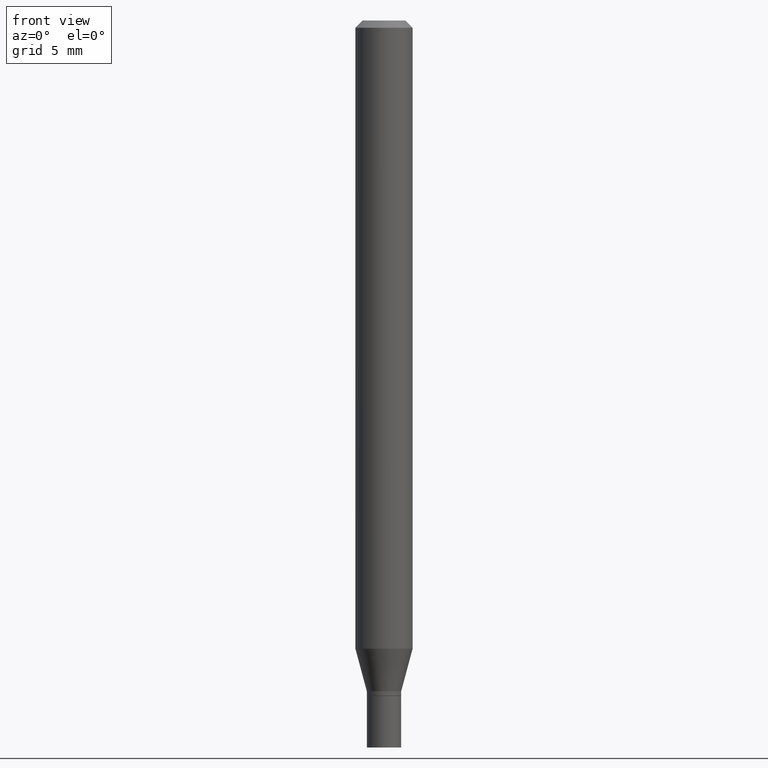
[diagram: clean part render]
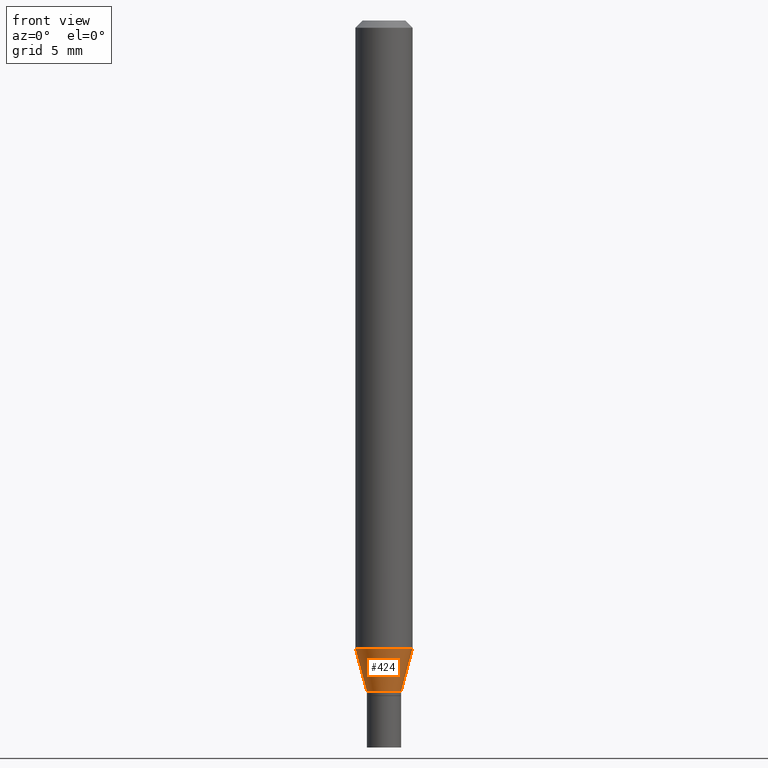
[diagram: same view with one face highlighted and labeled with its STEP entity id]
A machine part, front view. The second image highlights one B-rep face of the part: STEP entity #424.
In plain terms, the highlighted conical surface has half-angle 15 deg.
Its self-contained STEP definition (entity closure, byte-faithful):
#8 = DIRECTION ( 'NONE',  ( 0.2588190451025205729, 1.565188264969628081E-15, 0.9659258262890684232 ) ) ;
#29 = CARTESIAN_POINT ( 'NONE',  ( 3.169140741301243022E-29, -4.524693069253216153E-15, -1.295923600941373044 ) ) ;
#38 = CARTESIAN_POINT ( 'NONE',  ( -0.03544999999999964846, -4.580322773131960554E-15, -1.384000000000000119 ) ) ;
#42 = DIRECTION ( 'NONE',  ( -0.2588190451025205729, 5.211531920934545520E-15, 0.9659258262890684232 ) ) ;
#43 = VERTEX_POINT ( 'NONE', #125 ) ;
#45 = EDGE_CURVE ( 'NONE', #119, #43, #259, .T. ) ;
#48 = EDGE_CURVE ( 'NONE', #100, #119, #419, .T. ) ;
#61 = CARTESIAN_POINT ( 'NONE',  ( 3.384528827760229323E-29, -4.832210172958913572E-15, -1.384000000000000119 ) ) ;
#90 = CARTESIAN_POINT ( 'NONE',  ( 0.03544999999999964846, -5.079756199882889088E-15, -1.384000000000000119 ) ) ;
#98 = ORIENTED_EDGE ( 'NONE', *, *, #48, .T. ) ;
#100 = VERTEX_POINT ( 'NONE', #293 ) ;
#101 = ORIENTED_EDGE ( 'NONE', *, *, #45, .T. ) ;
#119 = VERTEX_POINT ( 'NONE', #403 ) ;
#125 = CARTESIAN_POINT ( 'NONE',  ( 0.05904999999999999832, -4.937037015370589496E-15, -1.295923600941373044 ) ) ;
#131 = FACE_OUTER_BOUND ( 'NONE', #315, .T. ) ;
#143 = LINE ( 'NONE', #38, #429 ) ;
#155 = DIRECTION ( 'NONE',  ( 1.000000000000000000, -6.982962677686269866E-15, 0.000000000000000000 ) ) ;
#165 = AXIS2_PLACEMENT_3D ( 'NONE', #29, #272, #421 ) ;
#175 = AXIS2_PLACEMENT_3D ( 'NONE', #61, #200, #155 ) ;
#176 = EDGE_CURVE ( 'NONE', #435, #43, #464, .T. ) ;
#200 = DIRECTION ( 'NONE',  ( -2.445468806185136597E-29, 3.491481338843145583E-15, 1.000000000000000000 ) ) ;
#206 = AXIS2_PLACEMENT_3D ( 'NONE', #219, #250, #338 ) ;
#213 = CONICAL_SURFACE ( 'NONE', #175, 0.03544999999999964846, 0.2617993877991492413 ) ;
#219 = CARTESIAN_POINT ( 'NONE',  ( 3.384528827760229323E-29, -4.832210172958913572E-15, -1.384000000000000119 ) ) ;
#234 = EDGE_CURVE ( 'NONE', #100, #435, #143, .T. ) ;
#238 = ORIENTED_EDGE ( 'NONE', *, *, #234, .F. ) ;
#250 = DIRECTION ( 'NONE',  ( -2.445468806185136597E-29, 3.491481338843145583E-15, 1.000000000000000000 ) ) ;
#259 = LINE ( 'NONE', #90, #365 ) ;
#272 = DIRECTION ( 'NONE',  ( -2.445468806185136597E-29, 3.491481338843145583E-15, 1.000000000000000000 ) ) ;
#293 = CARTESIAN_POINT ( 'NONE',  ( -0.03544999999999964846, -4.342720178459418213E-15, -1.384000000000000119 ) ) ;
#296 = CARTESIAN_POINT ( 'NONE',  ( -0.05904999999999999832, -4.105117583786875872E-15, -1.295923600941373044 ) ) ;
#315 = EDGE_LOOP ( 'NONE', ( #238, #98, #101, #449 ) ) ;
#338 = DIRECTION ( 'NONE',  ( 1.000000000000000000, -6.982962677686269866E-15, 0.000000000000000000 ) ) ;
#365 = VECTOR ( 'NONE', #8, 39.37007874015748143 ) ;
#403 = CARTESIAN_POINT ( 'NONE',  ( 0.03544999999999964846, -5.079756199882889088E-15, -1.384000000000000119 ) ) ;
#419 = CIRCLE ( 'NONE', #206, 0.03544999999999964846 ) ;
#421 = DIRECTION ( 'NONE',  ( 1.000000000000000000, -6.982962677686273021E-15, 0.000000000000000000 ) ) ;
#424 = ADVANCED_FACE ( 'NONE', ( #131 ), #213, .T. ) ;
#429 = VECTOR ( 'NONE', #42, 39.37007874015748143 ) ;
#435 = VERTEX_POINT ( 'NONE', #296 ) ;
#449 = ORIENTED_EDGE ( 'NONE', *, *, #176, .F. ) ;
#464 = CIRCLE ( 'NONE', #165, 0.05904999999999999832 ) ;